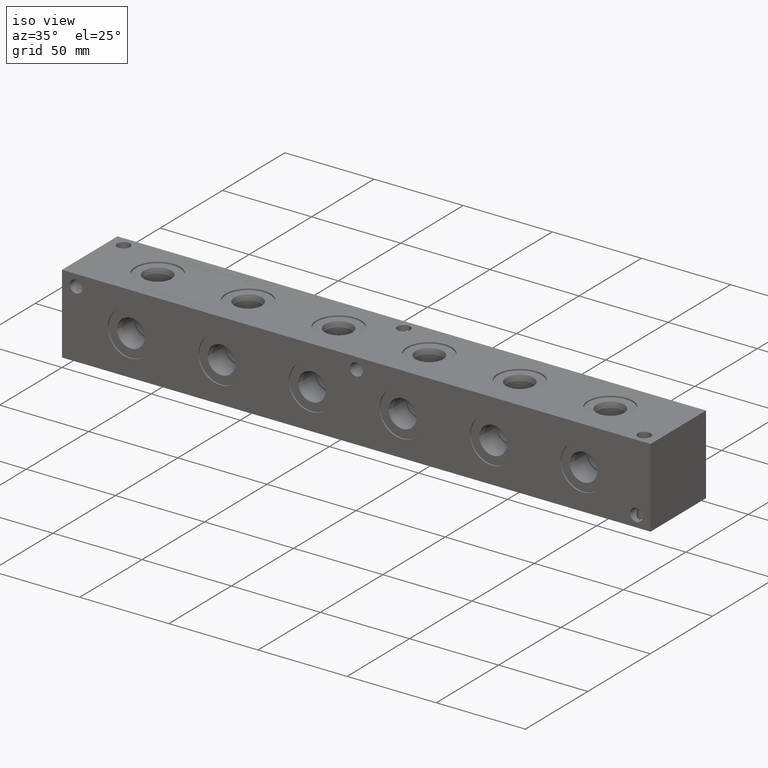
[diagram: clean part render]
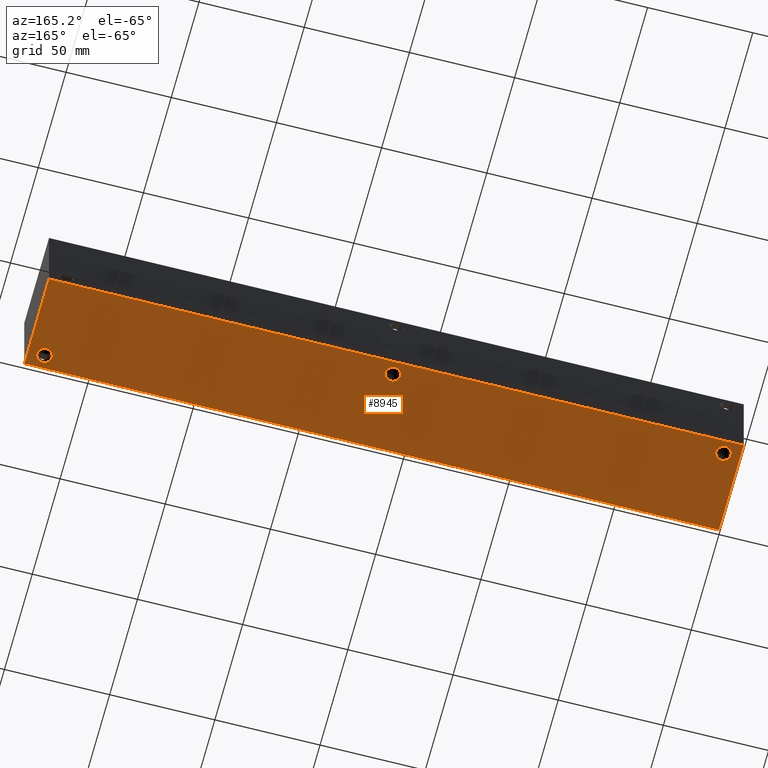
[diagram: tour spotlight — one face highlighted and labeled with its STEP entity id]
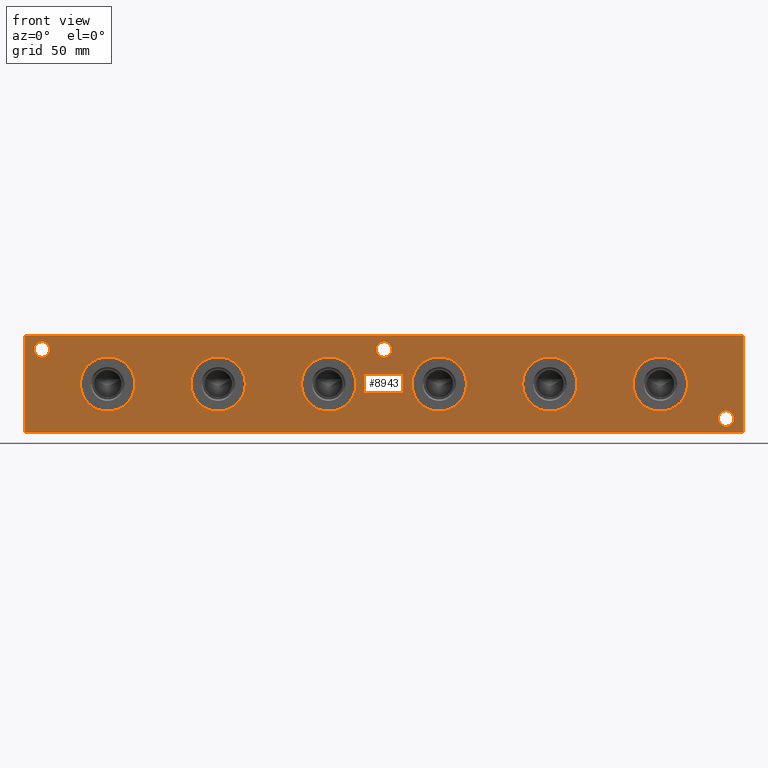
[diagram: tour spotlight — one face highlighted and labeled with its STEP entity id]
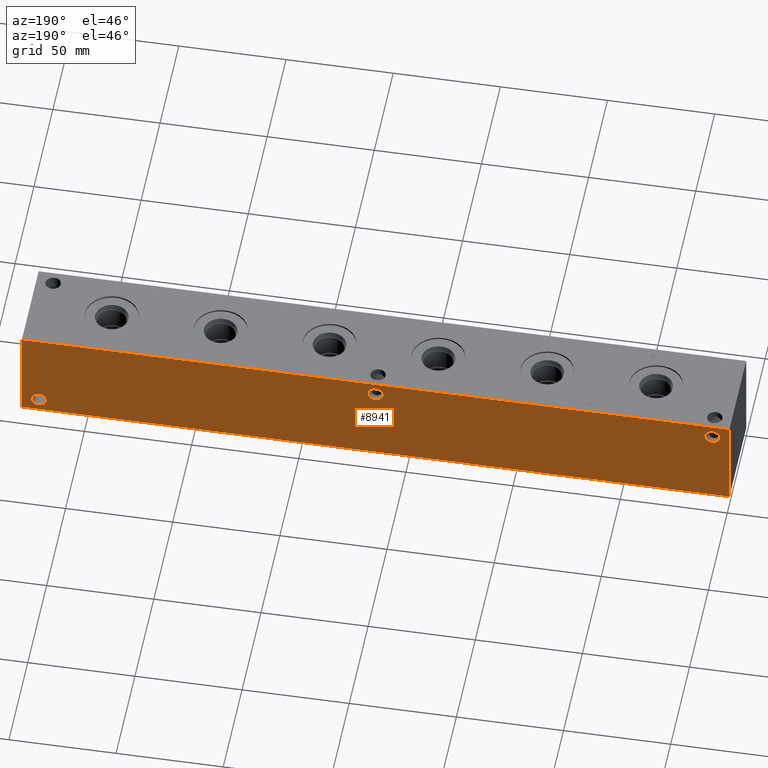
[diagram: tour spotlight — one face highlighted and labeled with its STEP entity id]
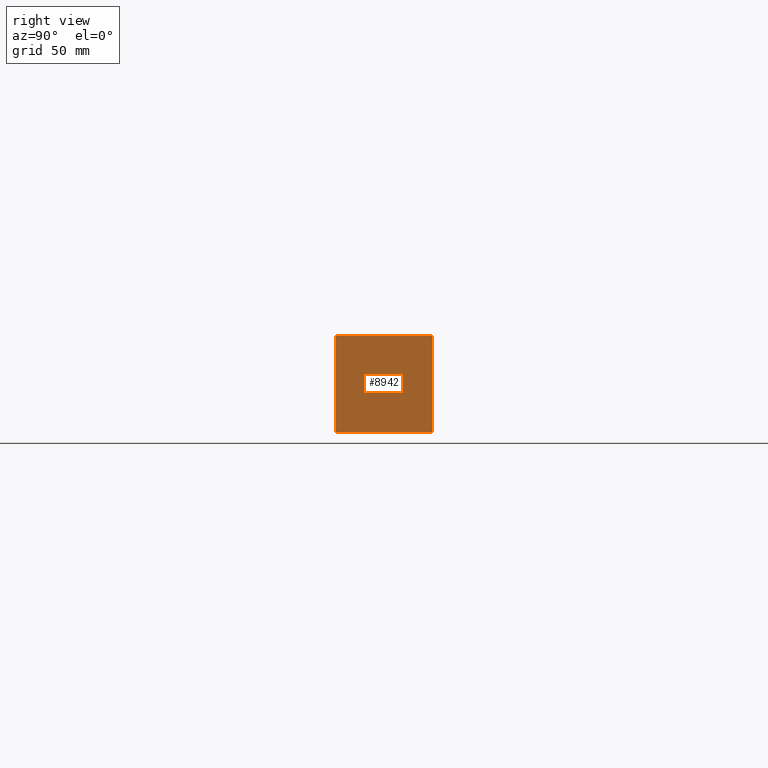
[diagram: tour spotlight — one face highlighted and labeled with its STEP entity id]
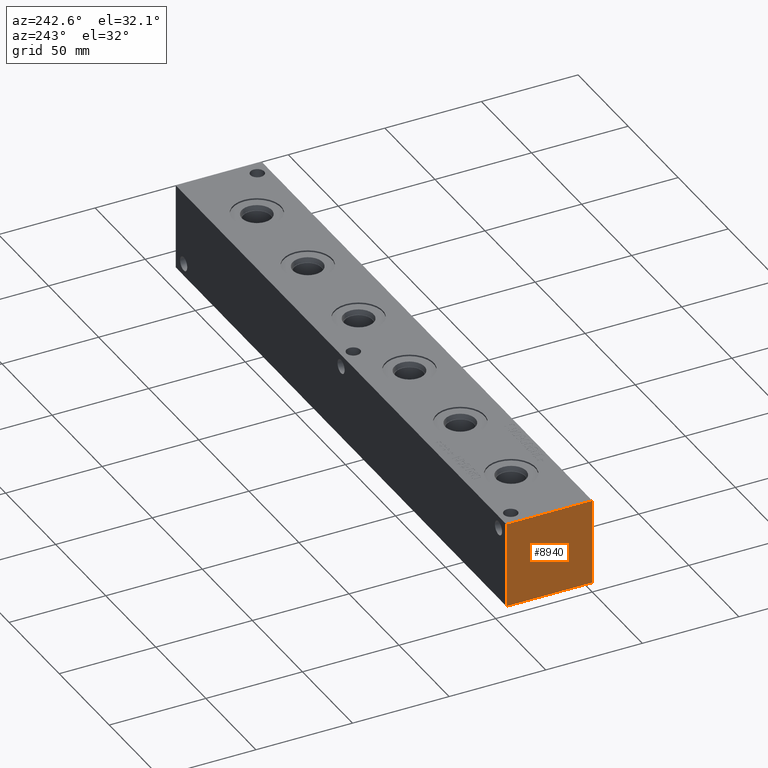
[diagram: tour spotlight — one face highlighted and labeled with its STEP entity id]
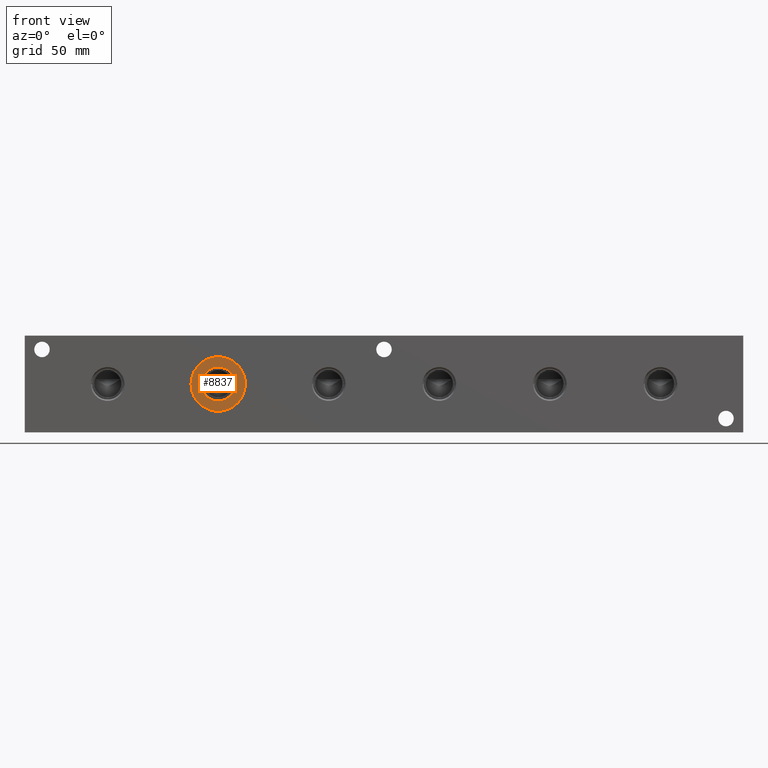
[diagram: tour spotlight — one face highlighted and labeled with its STEP entity id]
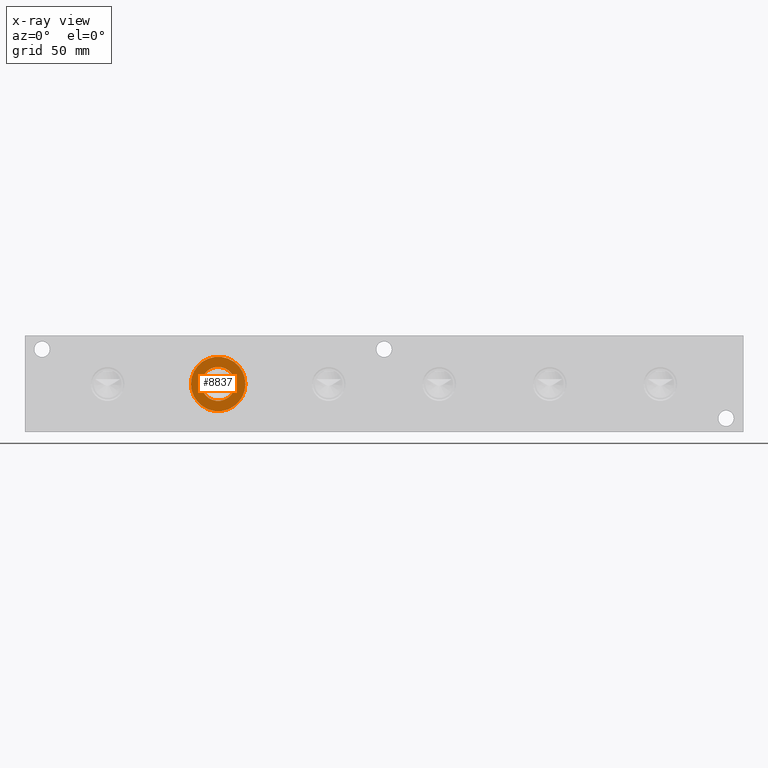
[diagram: x-ray of the same camera — body ghosted, this tour face saturated]
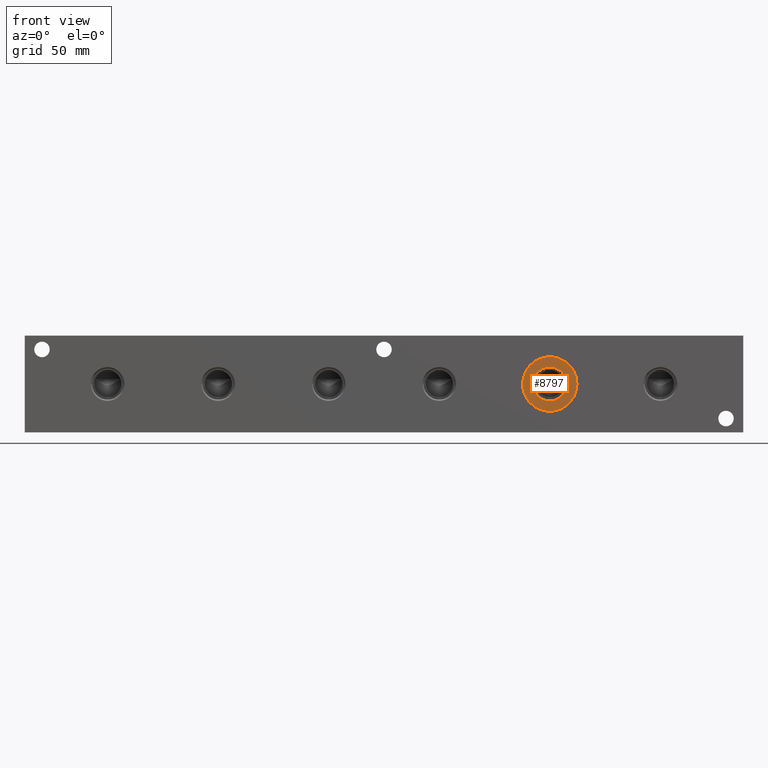
[diagram: tour spotlight — one face highlighted and labeled with its STEP entity id]
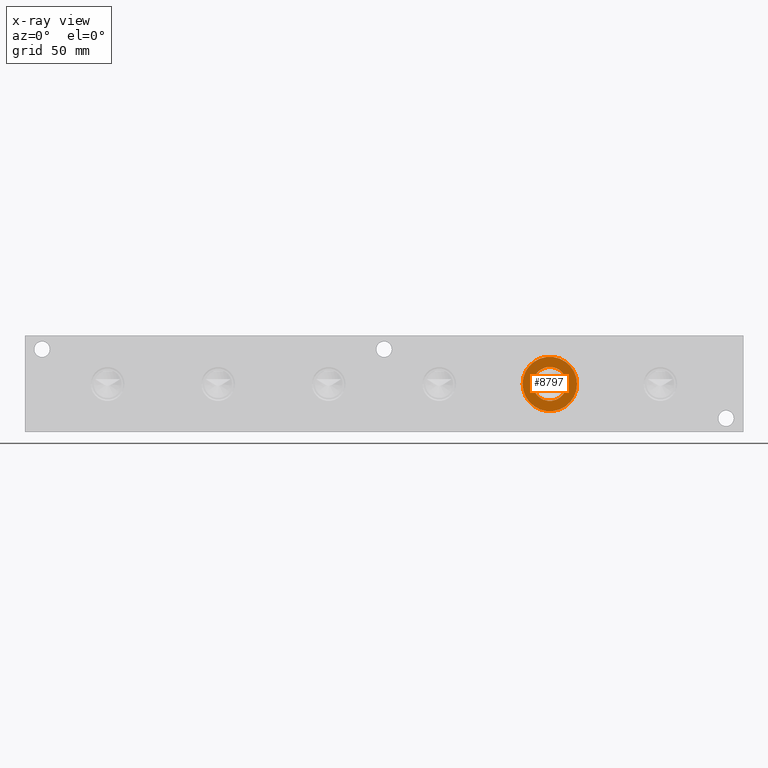
[diagram: x-ray of the same camera — body ghosted, this tour face saturated]
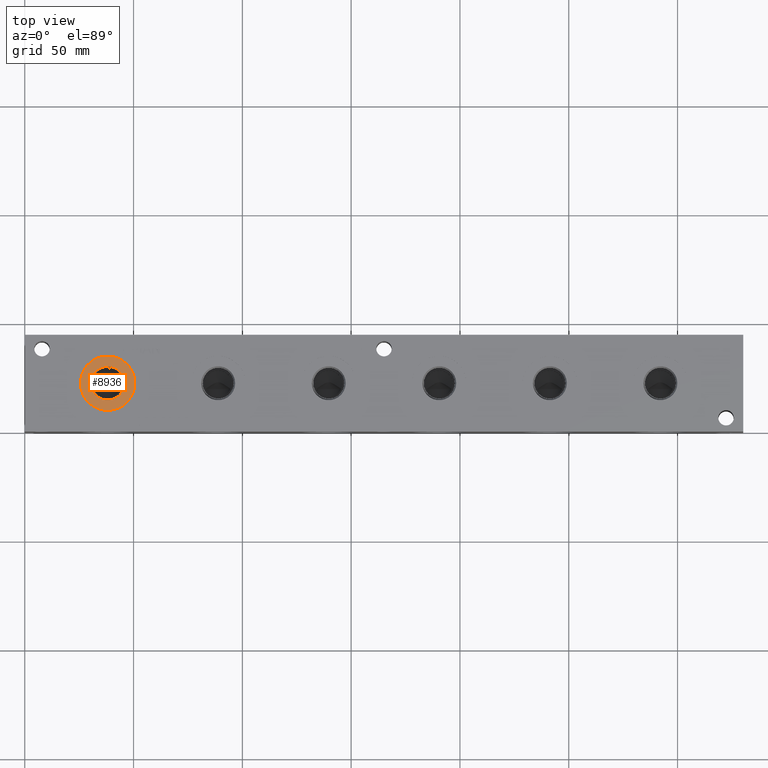
[diagram: tour spotlight — one face highlighted and labeled with its STEP entity id]
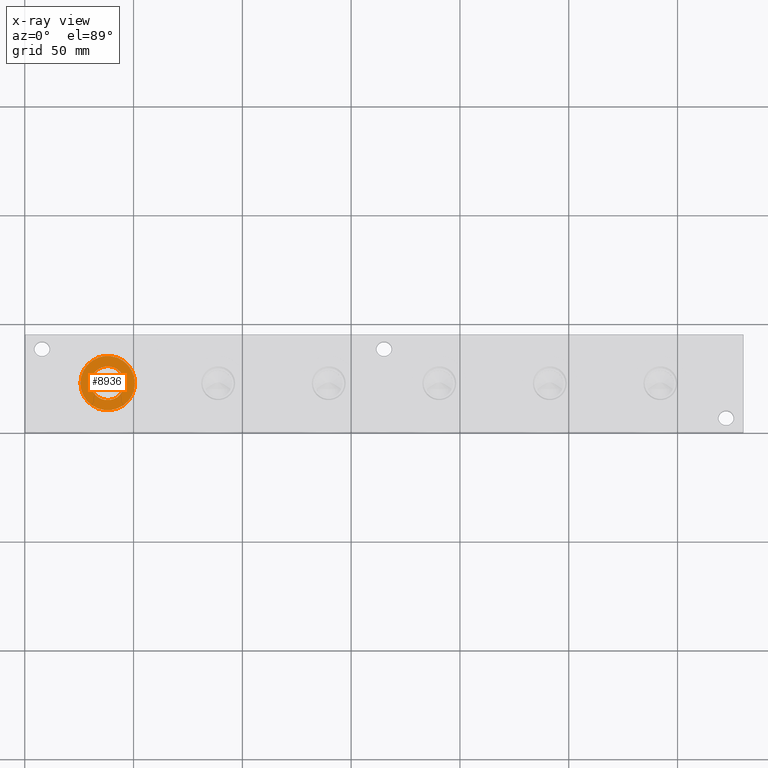
[diagram: x-ray of the same camera — body ghosted, this tour face saturated]
A machine part: a face-by-face anatomy tour. The part has 471 B-rep faces; the first image is the clean iso view, then the 8 largest visible faces are spotlighted one at a time (largest first), each with its STEP entity span.

Face 1 — auxiliary view, entity #8945. In plain terms, the highlighted planar face has unit normal (0, 0, 1).
Definition (entity closure, byte-faithful):
#382=CIRCLE('',#9529,3.5687);
#383=CIRCLE('',#9531,3.5687);
#384=CIRCLE('',#9533,3.5687);
#471=FACE_BOUND('',#1917,.T.);
#472=FACE_BOUND('',#1918,.T.);
#473=FACE_BOUND('',#1919,.T.);
#1371=FACE_OUTER_BOUND('',#1916,.T.);
#1916=EDGE_LOOP('',(#7939,#7940,#7941,#7942));
#1917=EDGE_LOOP('',(#7943));
#1918=EDGE_LOOP('',(#7944));
#1919=EDGE_LOOP('',(#7945));
#2616=LINE('',#15928,#3320);
#2619=LINE('',#15933,#3323);
#2621=LINE('',#15937,#3325);
#2623=LINE('',#15940,#3327);
#3320=VECTOR('',#11448,10.);
#3323=VECTOR('',#11453,10.);
#3325=VECTOR('',#11457,10.);
#3327=VECTOR('',#11461,10.);
#4147=VERTEX_POINT('',#15876);
#4148=VERTEX_POINT('',#15880);
#4149=VERTEX_POINT('',#15884);
#4162=VERTEX_POINT('',#15926);
#4163=VERTEX_POINT('',#15927);
#4164=VERTEX_POINT('',#15932);
#4165=VERTEX_POINT('',#15936);
#5395=EDGE_CURVE('',#4147,#4147,#382,.T.);
#5397=EDGE_CURVE('',#4148,#4148,#383,.T.);
#5399=EDGE_CURVE('',#4149,#4149,#384,.T.);
#5418=EDGE_CURVE('',#4162,#4163,#2616,.T.);
#5421=EDGE_CURVE('',#4164,#4162,#2619,.T.);
#5423=EDGE_CURVE('',#4165,#4164,#2621,.T.);
#5425=EDGE_CURVE('',#4163,#4165,#2623,.T.);
#7939=ORIENTED_EDGE('',*,*,#5425,.F.);
#7940=ORIENTED_EDGE('',*,*,#5418,.F.);
#7941=ORIENTED_EDGE('',*,*,#5421,.F.);
#7942=ORIENTED_EDGE('',*,*,#5423,.F.);
#7943=ORIENTED_EDGE('',*,*,#5395,.T.);
#7944=ORIENTED_EDGE('',*,*,#5397,.T.);
#7945=ORIENTED_EDGE('',*,*,#5399,.T.);
#8162=PLANE('',#9559);
#8945=ADVANCED_FACE('',(#1371,#471,#472,#473),#8162,.F.);
#9529=AXIS2_PLACEMENT_3D('',#15878,#11388,#11389);
#9531=AXIS2_PLACEMENT_3D('',#15882,#11393,#11394);
#9533=AXIS2_PLACEMENT_3D('',#15886,#11398,#11399);
#9559=AXIS2_PLACEMENT_3D('',#15942,#11464,#11465);
#11388=DIRECTION('center_axis',(0.,0.,1.));
#11389=DIRECTION('ref_axis',(1.,0.,0.));
#11393=DIRECTION('center_axis',(0.,0.,1.));
#11394=DIRECTION('ref_axis',(1.,0.,0.));
#11398=DIRECTION('center_axis',(0.,0.,1.));
#11399=DIRECTION('ref_axis',(1.,0.,0.));
#11448=DIRECTION('',(0.,-1.,0.));
#11453=DIRECTION('',(-1.,0.,0.));
#11457=DIRECTION('',(0.,1.,0.));
#11461=DIRECTION('',(1.,0.,0.));
#11464=DIRECTION('center_axis',(0.,0.,1.));
#11465=DIRECTION('ref_axis',(1.,0.,0.));
#15876=CARTESIAN_POINT('',(318.7065,6.35,0.));
#15878=CARTESIAN_POINT('Origin',(322.2752,6.35,0.));
#15880=CARTESIAN_POINT('',(4.3561,38.1,0.));
#15882=CARTESIAN_POINT('Origin',(7.9248,38.1,0.));
#15884=CARTESIAN_POINT('',(161.5313,38.1,0.));
#15886=CARTESIAN_POINT('Origin',(165.1,38.1,0.));
#15926=CARTESIAN_POINT('',(0.,44.45,0.));
#15927=CARTESIAN_POINT('',(0.,0.,0.));
#15928=CARTESIAN_POINT('',(0.,44.45,0.));
#15932=CARTESIAN_POINT('',(330.2,44.45,0.));
#15933=CARTESIAN_POINT('',(330.2,44.45,0.));
#15936=CARTESIAN_POINT('',(330.2,0.,0.));
#15937=CARTESIAN_POINT('',(330.2,0.,0.));
#15940=CARTESIAN_POINT('',(0.,0.,0.));
#15942=CARTESIAN_POINT('Origin',(165.1,22.225,0.));

Face 2 — front view, entity #8943. In plain terms, the highlighted planar face has unit normal (0, -1, 0).
Definition (entity closure, byte-faithful):
#181=CIRCLE('',#9166,12.5095);
#182=CIRCLE('',#9167,12.5095);
#201=CIRCLE('',#9196,12.5095);
#202=CIRCLE('',#9197,12.5095);
#221=CIRCLE('',#9226,12.5095);
#222=CIRCLE('',#9227,12.5095);
#241=CIRCLE('',#9256,12.5095);
#242=CIRCLE('',#9257,12.5095);
#261=CIRCLE('',#9286,12.5095);
#262=CIRCLE('',#9287,12.5095);
#336=CIRCLE('',#9431,3.5687);
#337=CIRCLE('',#9432,3.5687);
#339=CIRCLE('',#9440,3.5687);
#340=CIRCLE('',#9441,3.5687);
#342=CIRCLE('',#9449,3.5687);
#343=CIRCLE('',#9450,3.5687);
#372=CIRCLE('',#9514,12.5095);
#373=CIRCLE('',#9515,12.5095);
#462=FACE_BOUND('',#1906,.T.);
#463=FACE_BOUND('',#1907,.T.);
#464=FACE_BOUND('',#1908,.T.);
#465=FACE_BOUND('',#1909,.T.);
#466=FACE_BOUND('',#1910,.T.);
#467=FACE_BOUND('',#1911,.T.);
#468=FACE_BOUND('',#1912,.T.);
#469=FACE_BOUND('',#1913,.T.);
#470=FACE_BOUND('',#1914,.T.);
#1369=FACE_OUTER_BOUND('',#1905,.T.);
#1905=EDGE_LOOP('',(#7914,#7915,#7916,#7917));
#1906=EDGE_LOOP('',(#7918,#7919));
#1907=EDGE_LOOP('',(#7920,#7921));
#1908=EDGE_LOOP('',(#7922,#7923));
#1909=EDGE_LOOP('',(#7924,#7925));
#1910=EDGE_LOOP('',(#7926,#7927));
#1911=EDGE_LOOP('',(#7928,#7929));
#1912=EDGE_LOOP('',(#7930,#7931));
#1913=EDGE_LOOP('',(#7932,#7933));
#1914=EDGE_LOOP('',(#7934,#7935));
#2151=LINE('',#14084,#2855);
#2617=LINE('',#15929,#3321);
#2622=LINE('',#15938,#3326);
#2623=LINE('',#15940,#3327);
#2855=VECTOR('',#9885,10.);
#3321=VECTOR('',#11449,10.);
#3326=VECTOR('',#11458,10.);
#3327=VECTOR('',#11461,10.);
#3650=VERTEX_POINT('',#14082);
#3651=VERTEX_POINT('',#14083);
#3934=VERTEX_POINT('',#15035);
#3935=VERTEX_POINT('',#15036);
#3954=VERTEX_POINT('',#15093);
#3955=VERTEX_POINT('',#15094);
#3974=VERTEX_POINT('',#15151);
#3975=VERTEX_POINT('',#15152);
#3994=VERTEX_POINT('',#15209);
#3995=VERTEX_POINT('',#15210);
#4014=VERTEX_POINT('',#15267);
#4015=VERTEX_POINT('',#15268);
#4089=VERTEX_POINT('',#15635);
#4090=VERTEX_POINT('',#15636);
#4094=VERTEX_POINT('',#15651);
#4095=VERTEX_POINT('',#15652);
#4099=VERTEX_POINT('',#15667);
#4100=VERTEX_POINT('',#15668);
#4137=VERTEX_POINT('',#15847);
#4138=VERTEX_POINT('',#15848);
#4163=VERTEX_POINT('',#15927);
#4165=VERTEX_POINT('',#15936);
#4649=EDGE_CURVE('',#3650,#3651,#2151,.T.);
#5064=EDGE_CURVE('',#3934,#3935,#181,.T.);
#5065=EDGE_CURVE('',#3935,#3934,#182,.T.);
#5092=EDGE_CURVE('',#3954,#3955,#201,.T.);
#5093=EDGE_CURVE('',#3955,#3954,#202,.T.);
#5120=EDGE_CURVE('',#3974,#3975,#221,.T.);
#5121=EDGE_CURVE('',#3975,#3974,#222,.T.);
#5148=EDGE_CURVE('',#3994,#3995,#241,.T.);
#5149=EDGE_CURVE('',#3995,#3994,#242,.T.);
#5176=EDGE_CURVE('',#4014,#4015,#261,.T.);
#5177=EDGE_CURVE('',#4015,#4014,#262,.T.);
#5299=EDGE_CURVE('',#4089,#4090,#336,.T.);
#5300=EDGE_CURVE('',#4090,#4089,#337,.T.);
#5308=EDGE_CURVE('',#4094,#4095,#339,.T.);
#5309=EDGE_CURVE('',#4095,#4094,#340,.T.);
#5317=EDGE_CURVE('',#4099,#4100,#342,.T.);
#5318=EDGE_CURVE('',#4100,#4099,#343,.T.);
#5380=EDGE_CURVE('',#4137,#4138,#372,.T.);
#5381=EDGE_CURVE('',#4138,#4137,#373,.T.);
#5419=EDGE_CURVE('',#4163,#3650,#2617,.T.);
#5424=EDGE_CURVE('',#4165,#3651,#2622,.T.);
#5425=EDGE_CURVE('',#4163,#4165,#2623,.T.);
#7914=ORIENTED_EDGE('',*,*,#5425,.T.);
#7915=ORIENTED_EDGE('',*,*,#5424,.T.);
#7916=ORIENTED_EDGE('',*,*,#4649,.F.);
#7917=ORIENTED_EDGE('',*,*,#5419,.F.);
#7918=ORIENTED_EDGE('',*,*,#5064,.T.);
#7919=ORIENTED_EDGE('',*,*,#5065,.T.);
#7920=ORIENTED_EDGE('',*,*,#5092,.T.);
#7921=ORIENTED_EDGE('',*,*,#5093,.T.);
#7922=ORIENTED_EDGE('',*,*,#5120,.T.);
#7923=ORIENTED_EDGE('',*,*,#5121,.T.);
#7924=ORIENTED_EDGE('',*,*,#5148,.T.);
#7925=ORIENTED_EDGE('',*,*,#5149,.T.);
#7926=ORIENTED_EDGE('',*,*,#5176,.T.);
#7927=ORIENTED_EDGE('',*,*,#5177,.T.);
#7928=ORIENTED_EDGE('',*,*,#5299,.T.);
#7929=ORIENTED_EDGE('',*,*,#5300,.T.);
#7930=ORIENTED_EDGE('',*,*,#5308,.T.);
#7931=ORIENTED_EDGE('',*,*,#5309,.T.);
#7932=ORIENTED_EDGE('',*,*,#5317,.T.);
#7933=ORIENTED_EDGE('',*,*,#5318,.T.);
#7934=ORIENTED_EDGE('',*,*,#5380,.T.);
#7935=ORIENTED_EDGE('',*,*,#5381,.T.);
#8160=PLANE('',#9557);
#8943=ADVANCED_FACE('',(#1369,#462,#463,#464,#465,#466,#467,#468,#469,#470),
#8160,.T.);
#9166=AXIS2_PLACEMENT_3D('',#15037,#10586,#10587);
#9167=AXIS2_PLACEMENT_3D('',#15038,#10588,#10589);
#9196=AXIS2_PLACEMENT_3D('',#15095,#10654,#10655);
#9197=AXIS2_PLACEMENT_3D('',#15096,#10656,#10657);
#9226=AXIS2_PLACEMENT_3D('',#15153,#10722,#10723);
#9227=AXIS2_PLACEMENT_3D('',#15154,#10724,#10725);
#9256=AXIS2_PLACEMENT_3D('',#15211,#10790,#10791);
#9257=AXIS2_PLACEMENT_3D('',#15212,#10792,#10793);
#9286=AXIS2_PLACEMENT_3D('',#15269,#10858,#10859);
#9287=AXIS2_PLACEMENT_3D('',#15270,#10860,#10861);
#9431=AXIS2_PLACEMENT_3D('',#15637,#11166,#11167);
#9432=AXIS2_PLACEMENT_3D('',#15638,#11168,#11169);
#9440=AXIS2_PLACEMENT_3D('',#15653,#11186,#11187);
#9441=AXIS2_PLACEMENT_3D('',#15654,#11188,#11189);
#9449=AXIS2_PLACEMENT_3D('',#15669,#11206,#11207);
#9450=AXIS2_PLACEMENT_3D('',#15670,#11208,#11209);
#9514=AXIS2_PLACEMENT_3D('',#15849,#11353,#11354);
#9515=AXIS2_PLACEMENT_3D('',#15850,#11355,#11356);
#9557=AXIS2_PLACEMENT_3D('',#15939,#11459,#11460);
#9885=DIRECTION('',(1.,0.,0.));
#10586=DIRECTION('center_axis',(0.,1.,0.));
#10587=DIRECTION('ref_axis',(1.,0.,0.));
#10588=DIRECTION('center_axis',(0.,1.,0.));
#10589=DIRECTION('ref_axis',(1.,0.,0.));
#10654=DIRECTION('center_axis',(0.,1.,0.));
#10655=DIRECTION('ref_axis',(1.,0.,0.));
#10656=DIRECTION('center_axis',(0.,1.,0.));
#10657=DIRECTION('ref_axis',(1.,0.,0.));
#10722=DIRECTION('center_axis',(0.,1.,0.));
#10723=DIRECTION('ref_axis',(1.,0.,0.));
#10724=DIRECTION('center_axis',(0.,1.,0.));
#10725=DIRECTION('ref_axis',(1.,0.,0.));
#10790=DIRECTION('center_axis',(0.,1.,0.));
#10791=DIRECTION('ref_axis',(1.,0.,0.));
#10792=DIRECTION('center_axis',(0.,1.,0.));
#10793=DIRECTION('ref_axis',(1.,0.,0.));
#10858=DIRECTION('center_axis',(0.,1.,0.));
#10859=DIRECTION('ref_axis',(1.,0.,0.));
#10860=DIRECTION('center_axis',(0.,1.,0.));
#10861=DIRECTION('ref_axis',(1.,0.,0.));
#11166=DIRECTION('center_axis',(0.,1.,0.));
#11167=DIRECTION('ref_axis',(1.,0.,0.));
#11168=DIRECTION('center_axis',(0.,1.,0.));
#11169=DIRECTION('ref_axis',(1.,0.,0.));
#11186=DIRECTION('center_axis',(0.,1.,0.));
#11187=DIRECTION('ref_axis',(1.,0.,0.));
#11188=DIRECTION('center_axis',(0.,1.,0.));
#11189=DIRECTION('ref_axis',(1.,0.,0.));
#11206=DIRECTION('center_axis',(0.,1.,0.));
#11207=DIRECTION('ref_axis',(1.,0.,0.));
#11208=DIRECTION('center_axis',(0.,1.,0.));
#11209=DIRECTION('ref_axis',(1.,0.,0.));
#11353=DIRECTION('center_axis',(0.,1.,0.));
#11354=DIRECTION('ref_axis',(1.,0.,0.));
#11355=DIRECTION('center_axis',(0.,1.,0.));
#11356=DIRECTION('ref_axis',(1.,0.,0.));
#11449=DIRECTION('',(0.,0.,1.));
#11458=DIRECTION('',(0.,0.,1.));
#11459=DIRECTION('center_axis',(0.,-1.,0.));
#11460=DIRECTION('ref_axis',(1.,0.,0.));
#11461=DIRECTION('',(1.,0.,0.));
#14082=CARTESIAN_POINT('',(0.,0.,44.45));
#14083=CARTESIAN_POINT('',(330.2,0.,44.45));
#14084=CARTESIAN_POINT('',(0.,0.,44.45));
#15035=CARTESIAN_POINT('',(253.8095,0.,22.225));
#15036=CARTESIAN_POINT('',(228.7905,0.,22.225));
#15037=CARTESIAN_POINT('Origin',(241.3,0.,22.225));
#15038=CARTESIAN_POINT('Origin',(241.3,0.,22.225));
#15093=CARTESIAN_POINT('',(203.0095,0.,22.225));
#15094=CARTESIAN_POINT('',(177.9905,0.,22.225));
#15095=CARTESIAN_POINT('Origin',(190.5,0.,22.225));
#15096=CARTESIAN_POINT('Origin',(190.5,0.,22.225));
#15151=CARTESIAN_POINT('',(152.2095,0.,22.225));
#15152=CARTESIAN_POINT('',(127.1905,0.,22.225));
#15153=CARTESIAN_POINT('Origin',(139.7,0.,22.225));
#15154=CARTESIAN_POINT('Origin',(139.7,0.,22.225));
#15209=CARTESIAN_POINT('',(304.6095,0.,22.225));
#15210=CARTESIAN_POINT('',(279.5905,0.,22.225));
#15211=CARTESIAN_POINT('Origin',(292.1,0.,22.225));
#15212=CARTESIAN_POINT('Origin',(292.1,0.,22.225));
#15267=CARTESIAN_POINT('',(101.4095,0.,22.225));
#15268=CARTESIAN_POINT('',(76.3905,0.,22.225));
#15269=CARTESIAN_POINT('Origin',(88.9,0.,22.225));
#15270=CARTESIAN_POINT('Origin',(88.9,0.,22.225));
#15635=CARTESIAN_POINT('',(325.8439,0.,6.35));
#15636=CARTESIAN_POINT('',(318.7065,0.,6.35));
#15637=CARTESIAN_POINT('Origin',(322.2752,0.,6.35));
#15638=CARTESIAN_POINT('Origin',(322.2752,0.,6.35));
#15651=CARTESIAN_POINT('',(11.4935,0.,38.1));
#15652=CARTESIAN_POINT('',(4.3561,0.,38.1));
#15653=CARTESIAN_POINT('Origin',(7.9248,0.,38.1));
#15654=CARTESIAN_POINT('Origin',(7.9248,0.,38.1));
#15667=CARTESIAN_POINT('',(168.6687,0.,38.1));
#15668=CARTESIAN_POINT('',(161.5313,0.,38.1));
#15669=CARTESIAN_POINT('Origin',(165.1,0.,38.1));
#15670=CARTESIAN_POINT('Origin',(165.1,0.,38.1));
#15847=CARTESIAN_POINT('',(50.6095,0.,22.225));
#15848=CARTESIAN_POINT('',(25.5905,0.,22.225));
#15849=CARTESIAN_POINT('Origin',(38.1,0.,22.225));
#15850=CARTESIAN_POINT('Origin',(38.1,0.,22.225));
#15927=CARTESIAN_POINT('',(0.,0.,0.));
#15929=CARTESIAN_POINT('',(0.,0.,0.));
#15936=CARTESIAN_POINT('',(330.2,0.,0.));
#15938=CARTESIAN_POINT('',(330.2,0.,0.));
#15939=CARTESIAN_POINT('Origin',(0.,0.,0.));
#15940=CARTESIAN_POINT('',(0.,0.,0.));

Face 3 — auxiliary view, entity #8941. In plain terms, the highlighted planar face has unit normal (0, 1, 0).
Definition (entity closure, byte-faithful):
#338=CIRCLE('',#9438,3.5687);
#341=CIRCLE('',#9447,3.5687);
#344=CIRCLE('',#9456,3.5687);
#459=FACE_BOUND('',#1901,.T.);
#460=FACE_BOUND('',#1902,.T.);
#461=FACE_BOUND('',#1903,.T.);
#1367=FACE_OUTER_BOUND('',#1900,.T.);
#1900=EDGE_LOOP('',(#7903,#7904,#7905,#7906));
#1901=EDGE_LOOP('',(#7907));
#1902=EDGE_LOOP('',(#7908));
#1903=EDGE_LOOP('',(#7909));
#2153=LINE('',#14088,#2857);
#2618=LINE('',#15930,#3322);
#2619=LINE('',#15933,#3323);
#2620=LINE('',#15934,#3324);
#2857=VECTOR('',#9887,10.);
#3322=VECTOR('',#11450,10.);
#3323=VECTOR('',#11453,10.);
#3324=VECTOR('',#11454,10.);
#3652=VERTEX_POINT('',#14085);
#3653=VERTEX_POINT('',#14087);
#4093=VERTEX_POINT('',#15647);
#4098=VERTEX_POINT('',#15663);
#4103=VERTEX_POINT('',#15679);
#4162=VERTEX_POINT('',#15926);
#4164=VERTEX_POINT('',#15932);
#4651=EDGE_CURVE('',#3652,#3653,#2153,.T.);
#5307=EDGE_CURVE('',#4093,#4093,#338,.T.);
#5316=EDGE_CURVE('',#4098,#4098,#341,.T.);
#5325=EDGE_CURVE('',#4103,#4103,#344,.T.);
#5420=EDGE_CURVE('',#4162,#3653,#2618,.T.);
#5421=EDGE_CURVE('',#4164,#4162,#2619,.T.);
#5422=EDGE_CURVE('',#4164,#3652,#2620,.T.);
#7903=ORIENTED_EDGE('',*,*,#5421,.T.);
#7904=ORIENTED_EDGE('',*,*,#5420,.T.);
#7905=ORIENTED_EDGE('',*,*,#4651,.F.);
#7906=ORIENTED_EDGE('',*,*,#5422,.F.);
#7907=ORIENTED_EDGE('',*,*,#5307,.T.);
#7908=ORIENTED_EDGE('',*,*,#5316,.T.);
#7909=ORIENTED_EDGE('',*,*,#5325,.T.);
#8158=PLANE('',#9555);
#8941=ADVANCED_FACE('',(#1367,#459,#460,#461),#8158,.T.);
#9438=AXIS2_PLACEMENT_3D('',#15649,#11182,#11183);
#9447=AXIS2_PLACEMENT_3D('',#15665,#11202,#11203);
#9456=AXIS2_PLACEMENT_3D('',#15681,#11222,#11223);
#9555=AXIS2_PLACEMENT_3D('',#15931,#11451,#11452);
#9887=DIRECTION('',(-1.,0.,0.));
#11182=DIRECTION('center_axis',(0.,-1.,0.));
#11183=DIRECTION('ref_axis',(1.,0.,0.));
#11202=DIRECTION('center_axis',(0.,-1.,0.));
#11203=DIRECTION('ref_axis',(1.,0.,0.));
#11222=DIRECTION('center_axis',(0.,-1.,0.));
#11223=DIRECTION('ref_axis',(1.,0.,0.));
#11450=DIRECTION('',(0.,0.,1.));
#11451=DIRECTION('center_axis',(0.,1.,0.));
#11452=DIRECTION('ref_axis',(-1.,0.,0.));
#11453=DIRECTION('',(-1.,0.,0.));
#11454=DIRECTION('',(0.,0.,1.));
#14085=CARTESIAN_POINT('',(330.2,44.45,44.45));
#14087=CARTESIAN_POINT('',(0.,44.45,44.45));
#14088=CARTESIAN_POINT('',(330.2,44.45,44.45));
#15647=CARTESIAN_POINT('',(318.7065,44.45,6.35));
#15649=CARTESIAN_POINT('Origin',(322.2752,44.45,6.35));
#15663=CARTESIAN_POINT('',(4.3561,44.45,38.1));
#15665=CARTESIAN_POINT('Origin',(7.9248,44.45,38.1));
#15679=CARTESIAN_POINT('',(161.5313,44.45,38.1));
#15681=CARTESIAN_POINT('Origin',(165.1,44.45,38.1));
#15926=CARTESIAN_POINT('',(0.,44.45,0.));
#15930=CARTESIAN_POINT('',(0.,44.45,0.));
#15931=CARTESIAN_POINT('Origin',(330.2,44.45,0.));
#15932=CARTESIAN_POINT('',(330.2,44.45,0.));
#15933=CARTESIAN_POINT('',(330.2,44.45,0.));
#15934=CARTESIAN_POINT('',(330.2,44.45,0.));

Face 4 — right view, entity #8942. In plain terms, the highlighted planar face has unit normal (1, 0, 0).
Definition (entity closure, byte-faithful):
#1368=FACE_OUTER_BOUND('',#1904,.T.);
#1904=EDGE_LOOP('',(#7910,#7911,#7912,#7913));
#2152=LINE('',#14086,#2856);
#2620=LINE('',#15934,#3324);
#2621=LINE('',#15937,#3325);
#2622=LINE('',#15938,#3326);
#2856=VECTOR('',#9886,10.);
#3324=VECTOR('',#11454,10.);
#3325=VECTOR('',#11457,10.);
#3326=VECTOR('',#11458,10.);
#3651=VERTEX_POINT('',#14083);
#3652=VERTEX_POINT('',#14085);
#4164=VERTEX_POINT('',#15932);
#4165=VERTEX_POINT('',#15936);
#4650=EDGE_CURVE('',#3651,#3652,#2152,.T.);
#5422=EDGE_CURVE('',#4164,#3652,#2620,.T.);
#5423=EDGE_CURVE('',#4165,#4164,#2621,.T.);
#5424=EDGE_CURVE('',#4165,#3651,#2622,.T.);
#7910=ORIENTED_EDGE('',*,*,#5423,.T.);
#7911=ORIENTED_EDGE('',*,*,#5422,.T.);
#7912=ORIENTED_EDGE('',*,*,#4650,.F.);
#7913=ORIENTED_EDGE('',*,*,#5424,.F.);
#8159=PLANE('',#9556);
#8942=ADVANCED_FACE('',(#1368),#8159,.T.);
#9556=AXIS2_PLACEMENT_3D('',#15935,#11455,#11456);
#9886=DIRECTION('',(0.,1.,0.));
#11454=DIRECTION('',(0.,0.,1.));
#11455=DIRECTION('center_axis',(1.,0.,0.));
#11456=DIRECTION('ref_axis',(0.,1.,0.));
#11457=DIRECTION('',(0.,1.,0.));
#11458=DIRECTION('',(0.,0.,1.));
#14083=CARTESIAN_POINT('',(330.2,0.,44.45));
#14085=CARTESIAN_POINT('',(330.2,44.45,44.45));
#14086=CARTESIAN_POINT('',(330.2,0.,44.45));
#15932=CARTESIAN_POINT('',(330.2,44.45,0.));
#15934=CARTESIAN_POINT('',(330.2,44.45,0.));
#15935=CARTESIAN_POINT('Origin',(330.2,0.,0.));
#15936=CARTESIAN_POINT('',(330.2,0.,0.));
#15937=CARTESIAN_POINT('',(330.2,0.,0.));
#15938=CARTESIAN_POINT('',(330.2,0.,0.));

Face 5 — auxiliary view, entity #8940. In plain terms, the highlighted planar face has unit normal (-1, 0, 0).
Definition (entity closure, byte-faithful):
#1366=FACE_OUTER_BOUND('',#1899,.T.);
#1899=EDGE_LOOP('',(#7899,#7900,#7901,#7902));
#2154=LINE('',#14089,#2858);
#2616=LINE('',#15928,#3320);
#2617=LINE('',#15929,#3321);
#2618=LINE('',#15930,#3322);
#2858=VECTOR('',#9888,10.);
#3320=VECTOR('',#11448,10.);
#3321=VECTOR('',#11449,10.);
#3322=VECTOR('',#11450,10.);
#3650=VERTEX_POINT('',#14082);
#3653=VERTEX_POINT('',#14087);
#4162=VERTEX_POINT('',#15926);
#4163=VERTEX_POINT('',#15927);
#4652=EDGE_CURVE('',#3653,#3650,#2154,.T.);
#5418=EDGE_CURVE('',#4162,#4163,#2616,.T.);
#5419=EDGE_CURVE('',#4163,#3650,#2617,.T.);
#5420=EDGE_CURVE('',#4162,#3653,#2618,.T.);
#7899=ORIENTED_EDGE('',*,*,#5418,.T.);
#7900=ORIENTED_EDGE('',*,*,#5419,.T.);
#7901=ORIENTED_EDGE('',*,*,#4652,.F.);
#7902=ORIENTED_EDGE('',*,*,#5420,.F.);
#8157=PLANE('',#9554);
#8940=ADVANCED_FACE('',(#1366),#8157,.T.);
#9554=AXIS2_PLACEMENT_3D('',#15925,#11446,#11447);
#9888=DIRECTION('',(0.,-1.,0.));
#11446=DIRECTION('center_axis',(-1.,0.,0.));
#11447=DIRECTION('ref_axis',(0.,-1.,0.));
#11448=DIRECTION('',(0.,-1.,0.));
#11449=DIRECTION('',(0.,0.,1.));
#11450=DIRECTION('',(0.,0.,1.));
#14082=CARTESIAN_POINT('',(0.,0.,44.45));
#14087=CARTESIAN_POINT('',(0.,44.45,44.45));
#14089=CARTESIAN_POINT('',(0.,44.45,44.45));
#15925=CARTESIAN_POINT('Origin',(0.,44.45,0.));
#15926=CARTESIAN_POINT('',(0.,44.45,0.));
#15927=CARTESIAN_POINT('',(0.,0.,0.));
#15928=CARTESIAN_POINT('',(0.,44.45,0.));
#15929=CARTESIAN_POINT('',(0.,0.,0.));
#15930=CARTESIAN_POINT('',(0.,44.45,0.));

Face 6 — front view, entity #8837. An x-ray twin of the same camera follows (body ghosted, this face saturated) — the face is partly hidden behind the body. In plain terms, the highlighted planar face has unit normal (0, 1, 0).
Definition (entity closure, byte-faithful):
#263=CIRCLE('',#9288,12.5095);
#264=CIRCLE('',#9289,12.5095);
#265=CIRCLE('',#9291,7.79780000000001);
#266=CIRCLE('',#9292,7.79780000000001);
#443=FACE_BOUND('',#1781,.T.);
#1263=FACE_OUTER_BOUND('',#1780,.T.);
#1780=EDGE_LOOP('',(#7419,#7420));
#1781=EDGE_LOOP('',(#7421,#7422));
#4016=VERTEX_POINT('',#15271);
#4017=VERTEX_POINT('',#15273);
#4018=VERTEX_POINT('',#15277);
#4019=VERTEX_POINT('',#15278);
#5179=EDGE_CURVE('',#4016,#4017,#263,.T.);
#5180=EDGE_CURVE('',#4017,#4016,#264,.T.);
#5181=EDGE_CURVE('',#4018,#4019,#265,.T.);
#5182=EDGE_CURVE('',#4019,#4018,#266,.T.);
#7419=ORIENTED_EDGE('',*,*,#5180,.F.);
#7420=ORIENTED_EDGE('',*,*,#5179,.F.);
#7421=ORIENTED_EDGE('',*,*,#5181,.T.);
#7422=ORIENTED_EDGE('',*,*,#5182,.T.);
#8141=PLANE('',#9290);
#8837=ADVANCED_FACE('',(#1263,#443),#8141,.F.);
#9288=AXIS2_PLACEMENT_3D('',#15274,#10863,#10864);
#9289=AXIS2_PLACEMENT_3D('',#15275,#10865,#10866);
#9290=AXIS2_PLACEMENT_3D('',#15276,#10867,#10868);
#9291=AXIS2_PLACEMENT_3D('',#15279,#10869,#10870);
#9292=AXIS2_PLACEMENT_3D('',#15280,#10871,#10872);
#10863=DIRECTION('center_axis',(0.,1.,0.));
#10864=DIRECTION('ref_axis',(1.,0.,0.));
#10865=DIRECTION('center_axis',(0.,1.,0.));
#10866=DIRECTION('ref_axis',(1.,0.,0.));
#10867=DIRECTION('center_axis',(0.,1.,0.));
#10868=DIRECTION('ref_axis',(0.,0.,1.));
#10869=DIRECTION('center_axis',(0.,1.,0.));
#10870=DIRECTION('ref_axis',(1.,0.,0.));
#10871=DIRECTION('center_axis',(0.,1.,0.));
#10872=DIRECTION('ref_axis',(1.,0.,0.));
#15271=CARTESIAN_POINT('',(76.3905,0.7874,22.225));
#15273=CARTESIAN_POINT('',(101.4095,0.7874,22.225));
#15274=CARTESIAN_POINT('Origin',(88.9,0.7874,22.225));
#15275=CARTESIAN_POINT('Origin',(88.9,0.7874,22.225));
#15276=CARTESIAN_POINT('Origin',(96.6978,0.7874,22.225));
#15277=CARTESIAN_POINT('',(96.6978,0.7874,22.225));
#15278=CARTESIAN_POINT('',(81.1022,0.787399999999998,22.225));
#15279=CARTESIAN_POINT('Origin',(88.9,0.7874,22.225));
#15280=CARTESIAN_POINT('Origin',(88.9,0.7874,22.225));

Face 7 — front view, entity #8797. An x-ray twin of the same camera follows (body ghosted, this face saturated) — the face is partly hidden behind the body. In plain terms, the highlighted planar face has unit normal (0, 1, 0).
Definition (entity closure, byte-faithful):
#183=CIRCLE('',#9168,12.5095);
#184=CIRCLE('',#9169,12.5095);
#185=CIRCLE('',#9171,7.79779999999999);
#186=CIRCLE('',#9172,7.79779999999999);
#435=FACE_BOUND('',#1733,.T.);
#1223=FACE_OUTER_BOUND('',#1732,.T.);
#1732=EDGE_LOOP('',(#7203,#7204));
#1733=EDGE_LOOP('',(#7205,#7206));
#3936=VERTEX_POINT('',#15039);
#3937=VERTEX_POINT('',#15041);
#3938=VERTEX_POINT('',#15045);
#3939=VERTEX_POINT('',#15046);
#5067=EDGE_CURVE('',#3936,#3937,#183,.T.);
#5068=EDGE_CURVE('',#3937,#3936,#184,.T.);
#5069=EDGE_CURVE('',#3938,#3939,#185,.T.);
#5070=EDGE_CURVE('',#3939,#3938,#186,.T.);
#7203=ORIENTED_EDGE('',*,*,#5068,.F.);
#7204=ORIENTED_EDGE('',*,*,#5067,.F.);
#7205=ORIENTED_EDGE('',*,*,#5069,.T.);
#7206=ORIENTED_EDGE('',*,*,#5070,.T.);
#8133=PLANE('',#9170);
#8797=ADVANCED_FACE('',(#1223,#435),#8133,.F.);
#9168=AXIS2_PLACEMENT_3D('',#15042,#10591,#10592);
#9169=AXIS2_PLACEMENT_3D('',#15043,#10593,#10594);
#9170=AXIS2_PLACEMENT_3D('',#15044,#10595,#10596);
#9171=AXIS2_PLACEMENT_3D('',#15047,#10597,#10598);
#9172=AXIS2_PLACEMENT_3D('',#15048,#10599,#10600);
#10591=DIRECTION('center_axis',(0.,1.,0.));
#10592=DIRECTION('ref_axis',(1.,0.,0.));
#10593=DIRECTION('center_axis',(0.,1.,0.));
#10594=DIRECTION('ref_axis',(1.,0.,0.));
#10595=DIRECTION('center_axis',(0.,1.,0.));
#10596=DIRECTION('ref_axis',(0.,0.,1.));
#10597=DIRECTION('center_axis',(0.,1.,0.));
#10598=DIRECTION('ref_axis',(1.,0.,0.));
#10599=DIRECTION('center_axis',(0.,1.,0.));
#10600=DIRECTION('ref_axis',(1.,0.,0.));
#15039=CARTESIAN_POINT('',(228.7905,0.7874,22.225));
#15041=CARTESIAN_POINT('',(253.8095,0.7874,22.225));
#15042=CARTESIAN_POINT('Origin',(241.3,0.7874,22.225));
#15043=CARTESIAN_POINT('Origin',(241.3,0.7874,22.225));
#15044=CARTESIAN_POINT('Origin',(249.0978,0.7874,22.225));
#15045=CARTESIAN_POINT('',(249.0978,0.7874,22.225));
#15046=CARTESIAN_POINT('',(233.5022,0.7874,22.225));
#15047=CARTESIAN_POINT('Origin',(241.3,0.7874,22.225));
#15048=CARTESIAN_POINT('Origin',(241.3,0.7874,22.225));

Face 8 — top view, entity #8936. An x-ray twin of the same camera follows (body ghosted, this face saturated) — the face is partly hidden behind the body. In plain terms, the highlighted planar face has unit normal (0, 0, -1).
Definition (entity closure, byte-faithful):
#389=CIRCLE('',#9542,12.5095);
#390=CIRCLE('',#9543,12.5095);
#391=CIRCLE('',#9545,7.7978);
#392=CIRCLE('',#9546,7.7978);
#458=FACE_BOUND('',#1895,.T.);
#1362=FACE_OUTER_BOUND('',#1894,.T.);
#1894=EDGE_LOOP('',(#7878,#7879));
#1895=EDGE_LOOP('',(#7880,#7881));
#4154=VERTEX_POINT('',#15901);
#4155=VERTEX_POINT('',#15903);
#4156=VERTEX_POINT('',#15907);
#4157=VERTEX_POINT('',#15908);
#5407=EDGE_CURVE('',#4154,#4155,#389,.T.);
#5408=EDGE_CURVE('',#4155,#4154,#390,.T.);
#5409=EDGE_CURVE('',#4156,#4157,#391,.T.);
#5410=EDGE_CURVE('',#4157,#4156,#392,.T.);
#7878=ORIENTED_EDGE('',*,*,#5408,.F.);
#7879=ORIENTED_EDGE('',*,*,#5407,.F.);
#7880=ORIENTED_EDGE('',*,*,#5409,.T.);
#7881=ORIENTED_EDGE('',*,*,#5410,.T.);
#8156=PLANE('',#9544);
#8936=ADVANCED_FACE('',(#1362,#458),#8156,.F.);
#9542=AXIS2_PLACEMENT_3D('',#15904,#11419,#11420);
#9543=AXIS2_PLACEMENT_3D('',#15905,#11421,#11422);
#9544=AXIS2_PLACEMENT_3D('',#15906,#11423,#11424);
#9545=AXIS2_PLACEMENT_3D('',#15909,#11425,#11426);
#9546=AXIS2_PLACEMENT_3D('',#15910,#11427,#11428);
#11419=DIRECTION('center_axis',(0.,0.,-1.));
#11420=DIRECTION('ref_axis',(1.,0.,0.));
#11421=DIRECTION('center_axis',(0.,0.,-1.));
#11422=DIRECTION('ref_axis',(1.,0.,0.));
#11423=DIRECTION('center_axis',(0.,0.,-1.));
#11424=DIRECTION('ref_axis',(-1.,0.,0.));
#11425=DIRECTION('center_axis',(0.,0.,-1.));
#11426=DIRECTION('ref_axis',(1.,0.,0.));
#11427=DIRECTION('center_axis',(0.,0.,-1.));
#11428=DIRECTION('ref_axis',(1.,0.,0.));
#15901=CARTESIAN_POINT('',(25.5905,22.225,43.6626));
#15903=CARTESIAN_POINT('',(50.6095,22.225,43.6626));
#15904=CARTESIAN_POINT('Origin',(38.1,22.225,43.6626));
#15905=CARTESIAN_POINT('Origin',(38.1,22.225,43.6626));
#15906=CARTESIAN_POINT('Origin',(45.8978,22.225,43.6626));
#15907=CARTESIAN_POINT('',(45.8978,22.225,43.6626));
#15908=CARTESIAN_POINT('',(30.3022,22.225,43.6626));
#15909=CARTESIAN_POINT('Origin',(38.1,22.225,43.6626));
#15910=CARTESIAN_POINT('Origin',(38.1,22.225,43.6626));